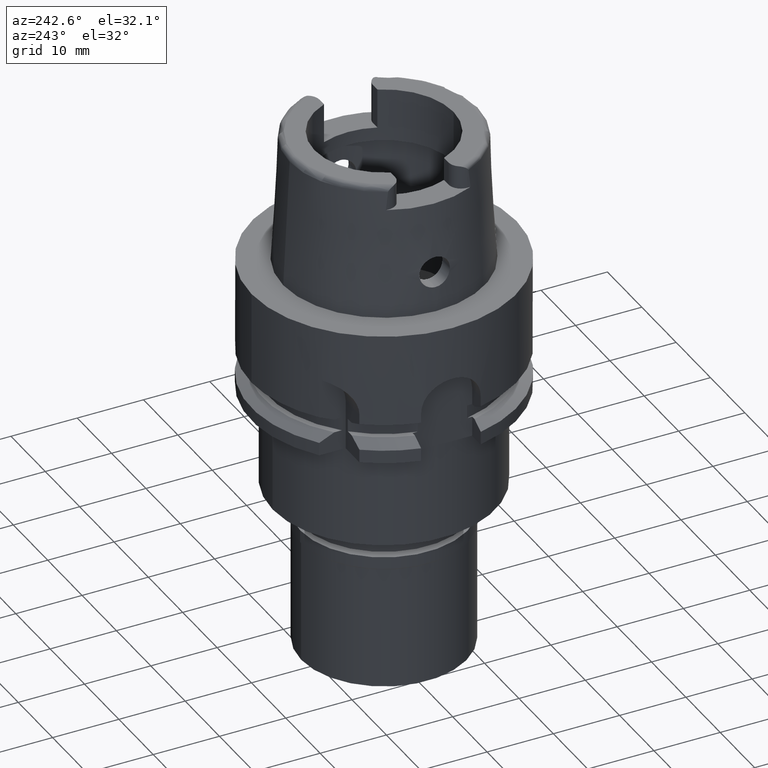
[diagram: clean part render]
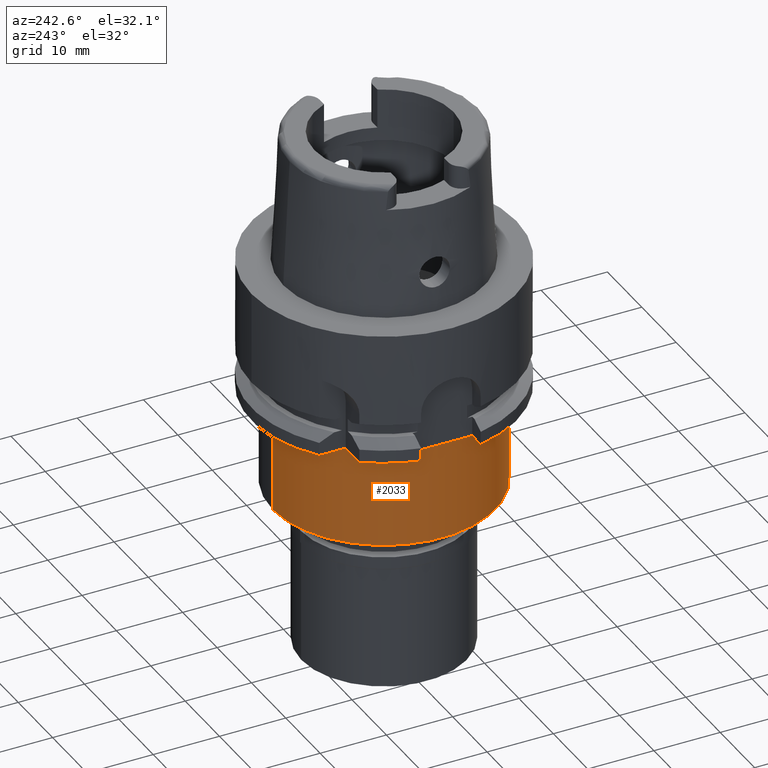
[diagram: same view with one face highlighted and labeled with its STEP entity id]
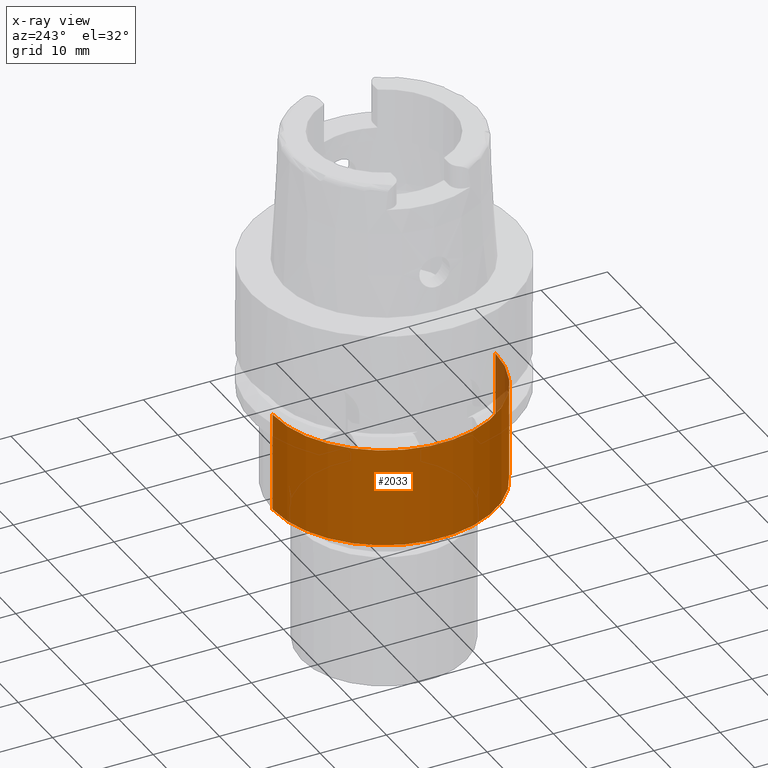
[diagram: x-ray of the same camera — body ghosted, the highlighted face saturated]
A machine part, auxiliary view. The second image highlights one B-rep face of the part: STEP entity #2033.
The next image is the same camera in x-ray: the body ghosted, the highlighted face saturated — about 3% of this face is hidden behind the body in this view.
In plain terms, the highlighted cylindrical surface (partial cylindrical patch) has radius 16.8 mm, axis along (0, 0, -1).
Its self-contained STEP definition (entity closure, byte-faithful):
#5 = EDGE_CURVE ( 'NONE', #4999, #3144, #5457, .T. ) ;
#43 = CARTESIAN_POINT ( 'NONE',  ( 0.0000000000000000000, 1.514765625864999983E-14, -35.00000000000000000 ) ) ;
#161 = CYLINDRICAL_SURFACE ( 'NONE', #2277, 16.80000000000000071 ) ;
#287 = CARTESIAN_POINT ( 'NONE',  ( 0.0000000000000000000, 16.80000000000000071, -20.00000000000000000 ) ) ;
#621 = ORIENTED_EDGE ( 'NONE', *, *, #1047, .F. ) ;
#1047 = EDGE_CURVE ( 'NONE', #4999, #5463, #2166, .T. ) ;
#1145 = AXIS2_PLACEMENT_3D ( 'NONE', #43, #4724, #3974 ) ;
#1379 = EDGE_LOOP ( 'NONE', ( #3813, #621, #1962, #5390 ) ) ;
#1741 = CARTESIAN_POINT ( 'NONE',  ( 0.0000000000000000000, -16.80000000000000071, -20.00000000000000000 ) ) ;
#1762 = CARTESIAN_POINT ( 'NONE',  ( 0.0000000000000000000, 1.514765625864999983E-14, -20.00000000000000000 ) ) ;
#1790 = DIRECTION ( 'NONE',  ( 0.0000000000000000000, -1.000000000000000000, 0.0000000000000000000 ) ) ;
#1855 = DIRECTION ( 'NONE',  ( 0.0000000000000000000, 0.0000000000000000000, -1.000000000000000000 ) ) ;
#1962 = ORIENTED_EDGE ( 'NONE', *, *, #5, .T. ) ;
#2033 = ADVANCED_FACE ( 'NONE', ( #2576 ), #161, .T. ) ;
#2166 = LINE ( 'NONE', #1741, #2967 ) ;
#2258 = CARTESIAN_POINT ( 'NONE',  ( 0.0000000000000000000, 16.80000000000000071, -20.00000000000000000 ) ) ;
#2269 = VECTOR ( 'NONE', #4880, 1000.000000000000000 ) ;
#2277 = AXIS2_PLACEMENT_3D ( 'NONE', #3838, #1855, #2937 ) ;
#2466 = EDGE_CURVE ( 'NONE', #4386, #5463, #4384, .T. ) ;
#2576 = FACE_OUTER_BOUND ( 'NONE', #1379, .T. ) ;
#2937 = DIRECTION ( 'NONE',  ( 0.0000000000000000000, -1.000000000000000000, 0.0000000000000000000 ) ) ;
#2967 = VECTOR ( 'NONE', #2994, 1000.000000000000000 ) ;
#2994 = DIRECTION ( 'NONE',  ( 0.0000000000000000000, 0.0000000000000000000, -1.000000000000000000 ) ) ;
#3144 = VERTEX_POINT ( 'NONE', #287 ) ;
#3201 = CARTESIAN_POINT ( 'NONE',  ( 0.0000000000000000000, -16.80000000000000071, -35.00000000000000000 ) ) ;
#3233 = CARTESIAN_POINT ( 'NONE',  ( 0.0000000000000000000, -16.80000000000000071, -20.00000000000000000 ) ) ;
#3467 = DIRECTION ( 'NONE',  ( 0.0000000000000000000, 0.0000000000000000000, -1.000000000000000000 ) ) ;
#3538 = LINE ( 'NONE', #2258, #2269 ) ;
#3813 = ORIENTED_EDGE ( 'NONE', *, *, #2466, .T. ) ;
#3838 = CARTESIAN_POINT ( 'NONE',  ( 0.0000000000000000000, 1.514765625864999983E-14, 23.68999999999999773 ) ) ;
#3862 = AXIS2_PLACEMENT_3D ( 'NONE', #1762, #3467, #1790 ) ;
#3974 = DIRECTION ( 'NONE',  ( 0.0000000000000000000, 1.000000000000000000, 0.0000000000000000000 ) ) ;
#4384 = CIRCLE ( 'NONE', #1145, 16.80000000000000071 ) ;
#4386 = VERTEX_POINT ( 'NONE', #4616 ) ;
#4616 = CARTESIAN_POINT ( 'NONE',  ( 0.0000000000000000000, 16.80000000000000071, -35.00000000000000000 ) ) ;
#4724 = DIRECTION ( 'NONE',  ( 0.0000000000000000000, 0.0000000000000000000, 1.000000000000000000 ) ) ;
#4880 = DIRECTION ( 'NONE',  ( 0.0000000000000000000, 0.0000000000000000000, -1.000000000000000000 ) ) ;
#4999 = VERTEX_POINT ( 'NONE', #3233 ) ;
#5348 = EDGE_CURVE ( 'NONE', #3144, #4386, #3538, .T. ) ;
#5390 = ORIENTED_EDGE ( 'NONE', *, *, #5348, .T. ) ;
#5457 = CIRCLE ( 'NONE', #3862, 16.80000000000000071 ) ;
#5463 = VERTEX_POINT ( 'NONE', #3201 ) ;